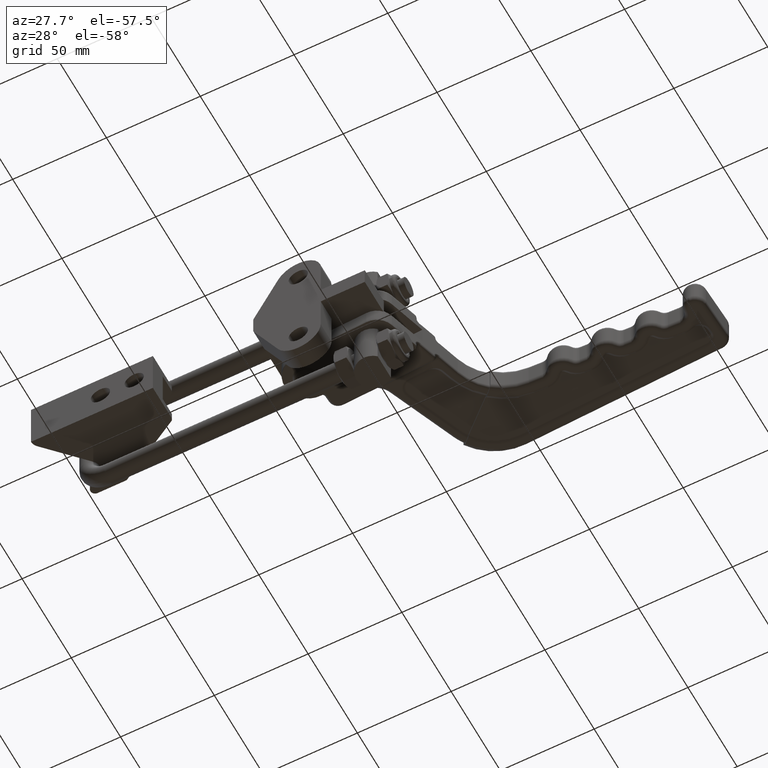
[diagram: clean part render]
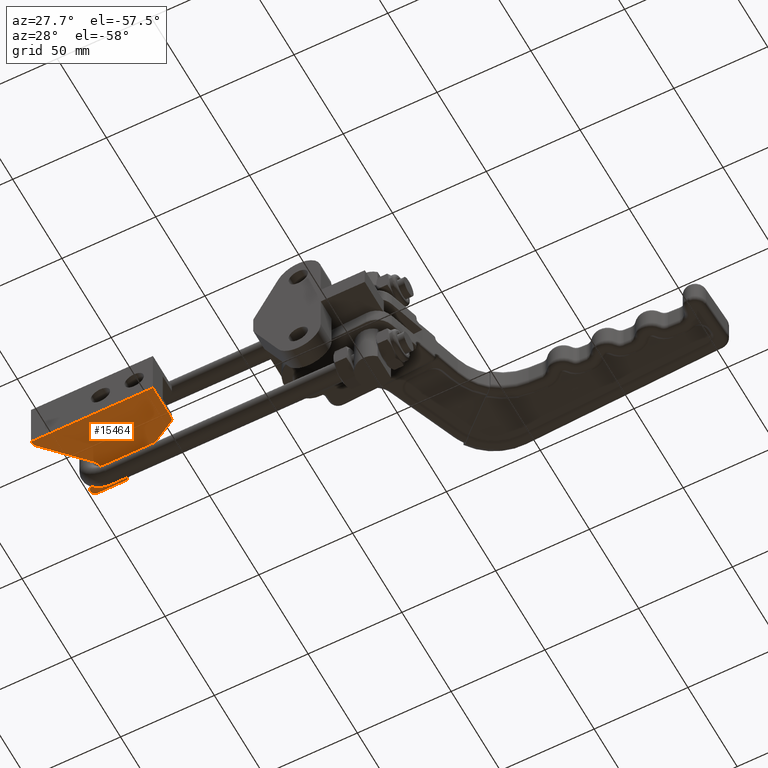
[diagram: same view with one face highlighted and labeled with its STEP entity id]
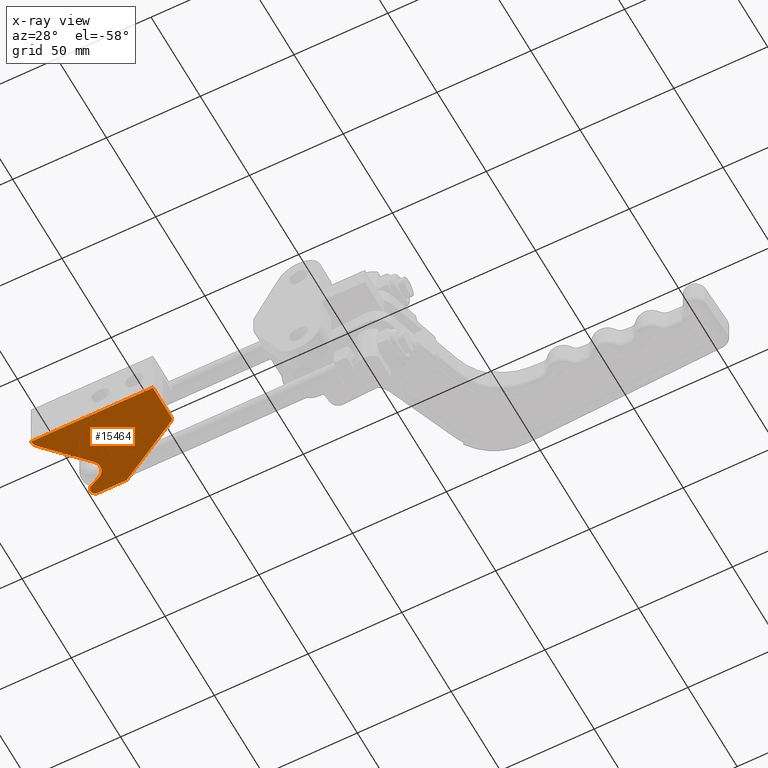
[diagram: x-ray of the same camera — body ghosted, the highlighted face saturated]
A machine part, auxiliary view. The second image highlights one B-rep face of the part: STEP entity #15464.
The next image is the same camera in x-ray: the body ghosted, the highlighted face saturated — about 0% of this face is hidden behind the body in this view.
In plain terms, the highlighted planar face has unit normal (0, 0, 1).
Its self-contained STEP definition (entity closure, byte-faithful):
#225 = CARTESIAN_POINT ( 'NONE',  ( -117.5931175381312200, 3.476996743911828300, -14.00000000000000200 ) ) ;
#402 = EDGE_CURVE ( 'NONE', #10390, #9585, #19306, .T. ) ;
#543 = CARTESIAN_POINT ( 'NONE',  ( -88.99999999999997200, 40.00000000000000000, -14.00000000000000200 ) ) ;
#696 = CIRCLE ( 'NONE', #4217, 5.500000000000005300 ) ;
#779 = EDGE_CURVE ( 'NONE', #18807, #14330, #696, .T. ) ;
#1330 = VERTEX_POINT ( 'NONE', #13972 ) ;
#1992 = ORIENTED_EDGE ( 'NONE', *, *, #17582, .F. ) ;
#2178 = DIRECTION ( 'NONE',  ( -0.0000000000000000000, -0.0000000000000000000, -1.000000000000000000 ) ) ;
#2384 = ORIENTED_EDGE ( 'NONE', *, *, #8512, .T. ) ;
#2478 = ORIENTED_EDGE ( 'NONE', *, *, #16810, .F. ) ;
#2695 = EDGE_CURVE ( 'NONE', #9585, #18807, #16823, .T. ) ;
#2977 = CARTESIAN_POINT ( 'NONE',  ( -53.99999999999996400, 20.00000000000000000, -14.00000000000000200 ) ) ;
#2980 = EDGE_CURVE ( 'NONE', #11520, #10698, #14475, .T. ) ;
#3130 = VECTOR ( 'NONE', #4030, 1000.000000000000000 ) ;
#3169 = ORIENTED_EDGE ( 'NONE', *, *, #2980, .T. ) ;
#3343 = DIRECTION ( 'NONE',  ( 0.0000000000000000000, 0.0000000000000000000, 1.000000000000000000 ) ) ;
#3533 = EDGE_CURVE ( 'NONE', #14330, #9967, #13661, .T. ) ;
#3607 = CIRCLE ( 'NONE', #9386, 2.500000000000002200 ) ;
#4030 = DIRECTION ( 'NONE',  ( -1.000000000000000000, -0.0000000000000000000, -0.0000000000000000000 ) ) ;
#4217 = AXIS2_PLACEMENT_3D ( 'NONE', #9591, #3343, #4841 ) ;
#4285 = EDGE_CURVE ( 'NONE', #7684, #1330, #19243, .T. ) ;
#4353 = CARTESIAN_POINT ( 'NONE',  ( -118.9999999999999700, 40.00000000000000000, -14.00000000000000200 ) ) ;
#4774 = VECTOR ( 'NONE', #10664, 1000.000000000000100 ) ;
#4841 = DIRECTION ( 'NONE',  ( 1.000000000000000000, 0.0000000000000000000, 0.0000000000000000000 ) ) ;
#4885 = VERTEX_POINT ( 'NONE', #9938 ) ;
#5193 = ORIENTED_EDGE ( 'NONE', *, *, #4285, .T. ) ;
#5375 = CIRCLE ( 'NONE', #19321, 2.000000000000001800 ) ;
#5553 = ORIENTED_EDGE ( 'NONE', *, *, #14697, .T. ) ;
#5648 = ORIENTED_EDGE ( 'NONE', *, *, #3533, .T. ) ;
#5832 = PLANE ( 'NONE',  #10440 ) ;
#6181 = DIRECTION ( 'NONE',  ( 0.8682431421244593000, -0.4961389383568338700, -0.0000000000000000000 ) ) ;
#6245 = ORIENTED_EDGE ( 'NONE', *, *, #779, .T. ) ;
#6420 = DIRECTION ( 'NONE',  ( -0.9058823529411771400, 0.4235294117647045400, -0.0000000000000000000 ) ) ;
#6838 = ORIENTED_EDGE ( 'NONE', *, *, #7260, .T. ) ;
#7260 = EDGE_CURVE ( 'NONE', #9967, #18207, #3607, .T. ) ;
#7321 = CARTESIAN_POINT ( 'NONE',  ( -118.9999999999999700, 40.00000000000000000, -14.00000000000000200 ) ) ;
#7392 = DIRECTION ( 'NONE',  ( 1.000000000000000000, 0.0000000000000000000, -0.0000000000000000000 ) ) ;
#7541 = DIRECTION ( 'NONE',  ( 1.000000000000000000, 0.0000000000000000000, 0.0000000000000000000 ) ) ;
#7684 = VERTEX_POINT ( 'NONE', #16464 ) ;
#8438 = CARTESIAN_POINT ( 'NONE',  ( -104.4999999999999600, 40.00000000000000000, -14.00000000000000200 ) ) ;
#8512 = EDGE_CURVE ( 'NONE', #4885, #10390, #19350, .T. ) ;
#8661 = DIRECTION ( 'NONE',  ( 1.000000000000000000, 0.0000000000000000000, 0.0000000000000000000 ) ) ;
#8682 = CARTESIAN_POINT ( 'NONE',  ( -105.5588235294117400, 35.23529411764705100, -14.00000000000000200 ) ) ;
#8690 = CARTESIAN_POINT ( 'NONE',  ( -99.67058823529407600, 32.48235294117647200, -14.00000000000000200 ) ) ;
#8946 = AXIS2_PLACEMENT_3D ( 'NONE', #16444, #17999, #7541 ) ;
#8953 = ORIENTED_EDGE ( 'NONE', *, *, #2695, .T. ) ;
#9386 = AXIS2_PLACEMENT_3D ( 'NONE', #14376, #12207, #8661 ) ;
#9585 = VERTEX_POINT ( 'NONE', #17184 ) ;
#9591 = CARTESIAN_POINT ( 'NONE',  ( -101.9999999999999700, 27.50000000000000000, -14.00000000000000200 ) ) ;
#9596 = DIRECTION ( 'NONE',  ( -0.0000000000000000000, -0.0000000000000000000, -1.000000000000000000 ) ) ;
#9938 = CARTESIAN_POINT ( 'NONE',  ( -118.9999999999999700, 0.0000000000000000000, -13.99999999999999800 ) ) ;
#9967 = VERTEX_POINT ( 'NONE', #13993 ) ;
#10104 = CARTESIAN_POINT ( 'NONE',  ( -118.9999999999999700, 0.0000000000000000000, -14.00000000000000200 ) ) ;
#10390 = VERTEX_POINT ( 'NONE', #225 ) ;
#10440 = AXIS2_PLACEMENT_3D ( 'NONE', #4353, #14599, #7392 ) ;
#10664 = DIRECTION ( 'NONE',  ( 0.6953993487823656400, 0.7186235076262548200, 0.0000000000000000000 ) ) ;
#10698 = VERTEX_POINT ( 'NONE', #16072 ) ;
#11149 = CARTESIAN_POINT ( 'NONE',  ( -55.99999999999996400, 18.83935492905756000, -14.00000000000000200 ) ) ;
#11520 = VERTEX_POINT ( 'NONE', #543 ) ;
#12207 = DIRECTION ( 'NONE',  ( -0.0000000000000000000, -0.0000000000000000000, -1.000000000000000000 ) ) ;
#12545 = CARTESIAN_POINT ( 'NONE',  ( -113.9999999999999600, 0.0000000000000000000, -14.00000000000000200 ) ) ;
#12640 = DIRECTION ( 'NONE',  ( 1.000000000000000000, 1.734723475976805500E-015, 0.0000000000000000000 ) ) ;
#13583 = FACE_OUTER_BOUND ( 'NONE', #13627, .T. ) ;
#13627 = EDGE_LOOP ( 'NONE', ( #1992, #2384, #15914, #8953, #6245, #5648, #6838, #2478, #3169, #5553, #5193 ) ) ;
#13661 = LINE ( 'NONE', #8682, #16013 ) ;
#13774 = DIRECTION ( 'NONE',  ( 1.000000000000000000, 0.0000000000000000000, 0.0000000000000000000 ) ) ;
#13872 = LINE ( 'NONE', #10104, #18324 ) ;
#13898 = DIRECTION ( 'NONE',  ( -0.0000000000000000000, -1.000000000000000000, -0.0000000000000000000 ) ) ;
#13972 = CARTESIAN_POINT ( 'NONE',  ( -53.99999999999996400, 0.0000000000000000000, -14.00000000000000200 ) ) ;
#13993 = CARTESIAN_POINT ( 'NONE',  ( -105.5588235294117400, 35.23529411764705100, -14.00000000000000200 ) ) ;
#14330 = VERTEX_POINT ( 'NONE', #8690 ) ;
#14376 = CARTESIAN_POINT ( 'NONE',  ( -104.4999999999999600, 37.50000000000000000, -14.00000000000000200 ) ) ;
#14475 = LINE ( 'NONE', #2977, #18155 ) ;
#14599 = DIRECTION ( 'NONE',  ( 0.0000000000000000000, 0.0000000000000000000, 1.000000000000000000 ) ) ;
#14624 = LINE ( 'NONE', #7321, #3130 ) ;
#14697 = EDGE_CURVE ( 'NONE', #10698, #7684, #5375, .T. ) ;
#15464 = ADVANCED_FACE ( 'NONE', ( #13583 ), #5832, .F. ) ;
#15914 = ORIENTED_EDGE ( 'NONE', *, *, #402, .T. ) ;
#16013 = VECTOR ( 'NONE', #6420, 1000.000000000000000 ) ;
#16072 = CARTESIAN_POINT ( 'NONE',  ( -55.00772212328630000, 20.57584121330647900, -14.00000000000000200 ) ) ;
#16444 = CARTESIAN_POINT ( 'NONE',  ( -101.9999999999999700, 27.50000000000000000, -14.00000000000000200 ) ) ;
#16464 = CARTESIAN_POINT ( 'NONE',  ( -53.99999999999996400, 18.83935492905756000, -14.00000000000000200 ) ) ;
#16810 = EDGE_CURVE ( 'NONE', #11520, #18207, #14624, .T. ) ;
#16823 = CIRCLE ( 'NONE', #8946, 5.500000000000005300 ) ;
#17184 = CARTESIAN_POINT ( 'NONE',  ( -98.04757070805555900, 23.67530358169699100, -14.00000000000000200 ) ) ;
#17206 = CARTESIAN_POINT ( 'NONE',  ( -96.49999999999995700, 27.50000000000000000, -14.00000000000000200 ) ) ;
#17442 = CARTESIAN_POINT ( 'NONE',  ( -117.5931175381312200, 3.476996743911828300, -14.00000000000000200 ) ) ;
#17582 = EDGE_CURVE ( 'NONE', #4885, #1330, #13872, .T. ) ;
#17797 = AXIS2_PLACEMENT_3D ( 'NONE', #12545, #9596, #13774 ) ;
#17919 = VECTOR ( 'NONE', #13898, 1000.000000000000000 ) ;
#17999 = DIRECTION ( 'NONE',  ( 0.0000000000000000000, 0.0000000000000000000, 1.000000000000000000 ) ) ;
#18155 = VECTOR ( 'NONE', #6181, 999.9999999999998900 ) ;
#18207 = VERTEX_POINT ( 'NONE', #8438 ) ;
#18324 = VECTOR ( 'NONE', #19055, 1000.000000000000000 ) ;
#18807 = VERTEX_POINT ( 'NONE', #17206 ) ;
#18952 = CARTESIAN_POINT ( 'NONE',  ( -53.99999999999996400, 40.00000000000000000, -14.00000000000000200 ) ) ;
#19055 = DIRECTION ( 'NONE',  ( 1.000000000000000000, 0.0000000000000000000, -0.0000000000000000000 ) ) ;
#19243 = LINE ( 'NONE', #18952, #17919 ) ;
#19306 = LINE ( 'NONE', #17442, #4774 ) ;
#19321 = AXIS2_PLACEMENT_3D ( 'NONE', #11149, #2178, #12640 ) ;
#19350 = CIRCLE ( 'NONE', #17797, 5.000000000000004400 ) ;